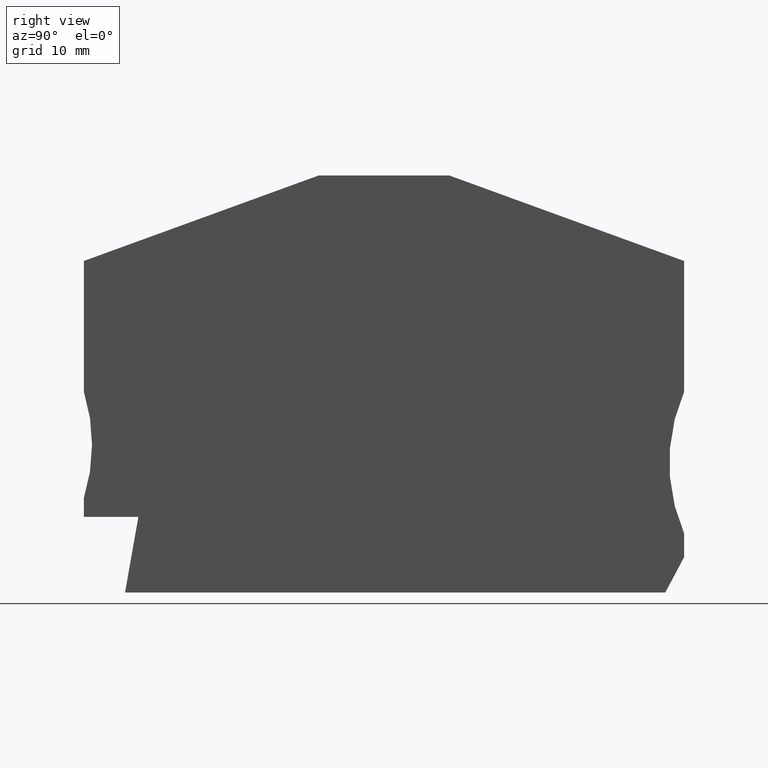
[diagram: clean part render]
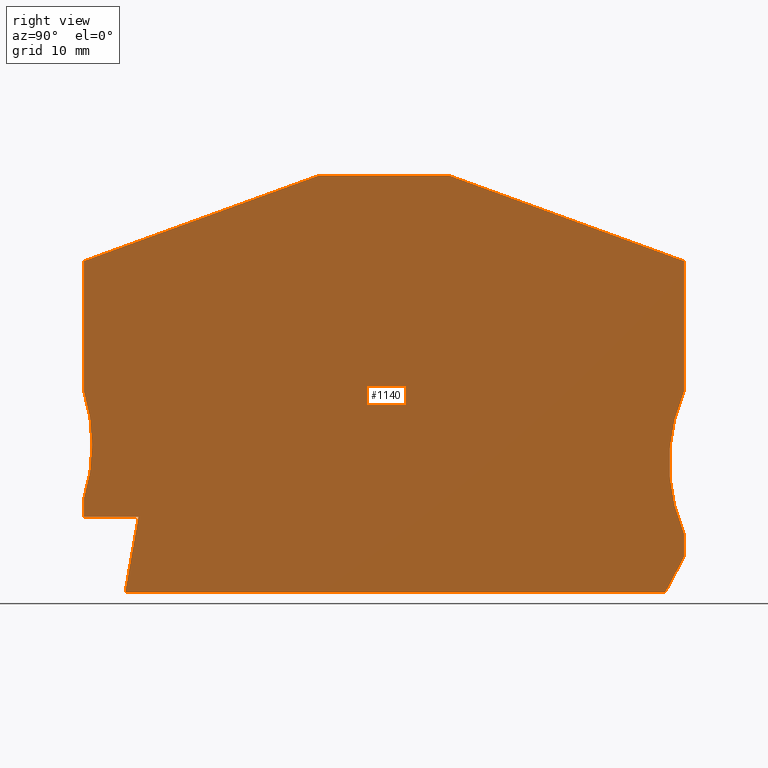
[diagram: same view with one face highlighted and labeled with its STEP entity id]
A machine part, right view. The second image highlights one B-rep face of the part: STEP entity #1140.
In plain terms, the highlighted planar face has unit normal (-1, 0, -0).
Its self-contained STEP definition (entity closure, byte-faithful):
#10=CARTESIAN_POINT('',(-39.2384935689211,10.4826632455885,0.));
#20=DIRECTION('',(0.,0.,-1.));
#30=DIRECTION('',(-1.,0.,0.));
#40=AXIS2_PLACEMENT_3D('',#10,#20,#30);
#50=PLANE('',#40);
#60=CARTESIAN_POINT('',(7.89999999999908,0.,0.));
#70=DIRECTION('',(1.77635683940139E-15,-1.,0.));
#80=VECTOR('',#70,1.);
#90=LINE('',#60,#80);
#100=CARTESIAN_POINT('',(7.89999999999907,5.21722499999871,0.));
#110=VERTEX_POINT('',#100);
#120=CARTESIAN_POINT('',(7.89999999999908,3.21722499999996,0.));
#130=VERTEX_POINT('',#120);
#140=EDGE_CURVE('',#110,#130,#90,.T.);
#150=ORIENTED_EDGE('',*,*,#140,.F.);
#160=CARTESIAN_POINT('',(6.18678137793485,0.,0.));
#170=DIRECTION('',(0.470025375689051,0.882652902452808,0.));
#180=VECTOR('',#170,1.);
#190=LINE('',#160,#180);
#200=CARTESIAN_POINT('',(6.30245681722737,0.217224999999992,0.));
#210=VERTEX_POINT('',#200);
#220=EDGE_CURVE('',#210,#130,#190,.T.);
#230=ORIENTED_EDGE('',*,*,#220,.T.);
#240=CARTESIAN_POINT('',(0.,0.217224999999992,0.));
#250=DIRECTION('',(-1.,0.,0.));
#260=VECTOR('',#250,1.);
#270=LINE('',#240,#260);
#280=CARTESIAN_POINT('',(-39.4166561668892,0.217224999999992,0.));
#290=VERTEX_POINT('',#280);
#300=EDGE_CURVE('',#210,#290,#270,.T.);
#310=ORIENTED_EDGE('',*,*,#300,.F.);
#320=CARTESIAN_POINT('',(-39.4549587952736,0.,0.));
#330=DIRECTION('',(0.173648177666793,0.984807753012232,0.));
#340=VECTOR('',#330,1.);
#350=LINE('',#320,#340);
#360=CARTESIAN_POINT('',(-38.2881634903552,6.61722500000401,0.));
#370=VERTEX_POINT('',#360);
#380=EDGE_CURVE('',#290,#370,#350,.T.);
#390=ORIENTED_EDGE('',*,*,#380,.F.);
#400=CARTESIAN_POINT('',(0.,6.61722500000392,0.));
#410=DIRECTION('',(1.,-1.96726162400409E-15,0.));
#420=VECTOR('',#410,1.);
#430=LINE('',#400,#420);
#440=CARTESIAN_POINT('',(-42.9,6.61722500000401,0.));
#450=VERTEX_POINT('',#440);
#460=EDGE_CURVE('',#450,#370,#430,.T.);
#470=ORIENTED_EDGE('',*,*,#460,.T.);
#480=CARTESIAN_POINT('',(-42.9,0.,0.));
#490=DIRECTION('',(0.,1.,0.));
#500=VECTOR('',#490,1.);
#510=LINE('',#480,#500);
#520=CARTESIAN_POINT('',(-42.9,8.21722499999915,0.));
#530=VERTEX_POINT('',#520);
#540=EDGE_CURVE('',#450,#530,#510,.T.);
#550=ORIENTED_EDGE('',*,*,#540,.F.);
#560=CARTESIAN_POINT('',(-57.2090880212678,12.7172249999982,0.));
#570=DIRECTION('',(0.,0.,1.));
#580=DIRECTION('',(1.,0.,0.));
#590=AXIS2_PLACEMENT_3D('',#560,#570,#580);
#600=CIRCLE('',#590,15.0000000000127);
#610=CARTESIAN_POINT('',(-42.9,17.2172249999973,0.));
#620=VERTEX_POINT('',#610);
#630=EDGE_CURVE('',#530,#620,#600,.T.);
#640=ORIENTED_EDGE('',*,*,#630,.F.);
#650=CARTESIAN_POINT('',(-42.9,0.,0.));
#660=DIRECTION('',(0.,-1.,0.));
#670=VECTOR('',#660,1.);
#680=LINE('',#650,#670);
#690=CARTESIAN_POINT('',(-42.9,28.2804146507667,0.));
#700=VERTEX_POINT('',#690);
#710=EDGE_CURVE('',#700,#620,#680,.T.);
#720=ORIENTED_EDGE('',*,*,#710,.T.);
#730=CARTESIAN_POINT('',(0.,43.8947377007868,0.));
#740=DIRECTION('',(0.939692620785908,0.342020143325669,0.));
#750=VECTOR('',#740,1.);
#760=LINE('',#730,#750);
#770=CARTESIAN_POINT('',(-23.017026976606,35.517225,0.));
#780=VERTEX_POINT('',#770);
#790=EDGE_CURVE('',#700,#780,#760,.T.);
#800=ORIENTED_EDGE('',*,*,#790,.F.);
#810=CARTESIAN_POINT('',(0.,35.517225,0.));
#820=DIRECTION('',(1.,0.,0.));
#830=VECTOR('',#820,1.);
#840=LINE('',#810,#830);
#850=CARTESIAN_POINT('',(-11.9829730233949,35.517225,0.));
#860=VERTEX_POINT('',#850);
#870=EDGE_CURVE('',#780,#860,#840,.T.);
#880=ORIENTED_EDGE('',*,*,#870,.F.);
#890=CARTESIAN_POINT('',(0.,31.1557795014694,0.));
#900=DIRECTION('',(-0.939692620785908,0.342020143325669,0.));
#910=VECTOR('',#900,1.);
#920=LINE('',#890,#910);
#930=CARTESIAN_POINT('',(7.89999999999908,28.2804146507667,0.));
#940=VERTEX_POINT('',#930);
#950=EDGE_CURVE('',#940,#860,#920,.T.);
#960=ORIENTED_EDGE('',*,*,#950,.T.);
#970=CARTESIAN_POINT('',(7.89999999999908,0.,0.));
#980=DIRECTION('',(0.,-1.,0.));
#990=VECTOR('',#980,1.);
#1000=LINE('',#970,#990);
#1010=CARTESIAN_POINT('',(7.89999999999907,17.2172249999986,0.));
#1020=VERTEX_POINT('',#1010);
#1030=EDGE_CURVE('',#940,#1020,#1000,.T.);
#1040=ORIENTED_EDGE('',*,*,#1030,.F.);
#1050=CARTESIAN_POINT('',(21.6477270848667,11.2172249999987,0.));
#1060=DIRECTION('',(0.,0.,1.));
#1070=DIRECTION('',(1.,0.,0.));
#1080=AXIS2_PLACEMENT_3D('',#1050,#1060,#1070);
#1090=CIRCLE('',#1080,15.0000000000001);
#1100=EDGE_CURVE('',#1020,#110,#1090,.T.);
#1110=ORIENTED_EDGE('',*,*,#1100,.F.);
#1120=EDGE_LOOP('',(#1110,#1040,#960,#880,#800,#720,#640,#550,#470,#390,
#310,#230,#150));
#1130=FACE_OUTER_BOUND('',#1120,.T.);
#1140=ADVANCED_FACE('',(#1130),#50,.F.);